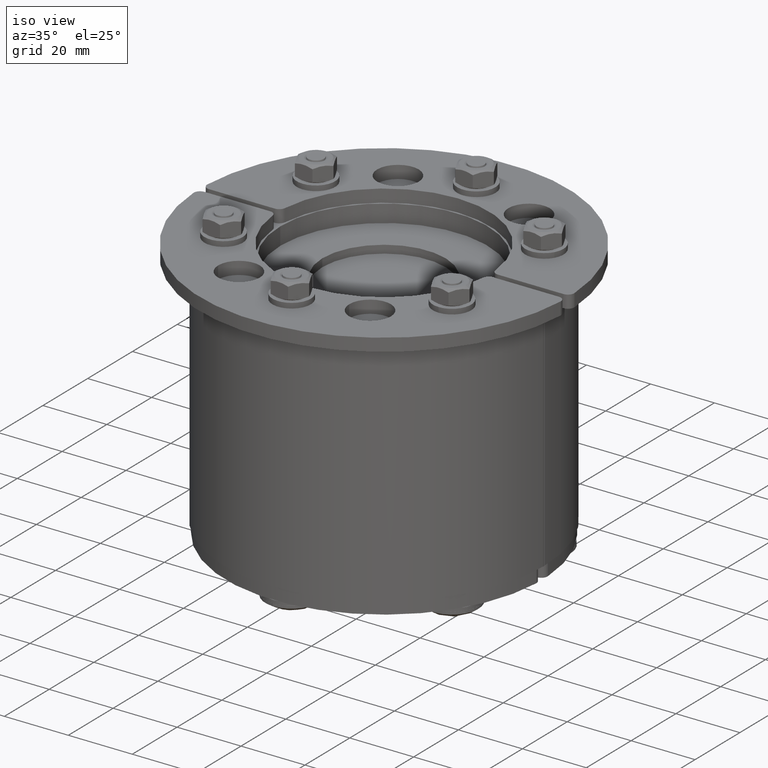
[diagram: clean part render]
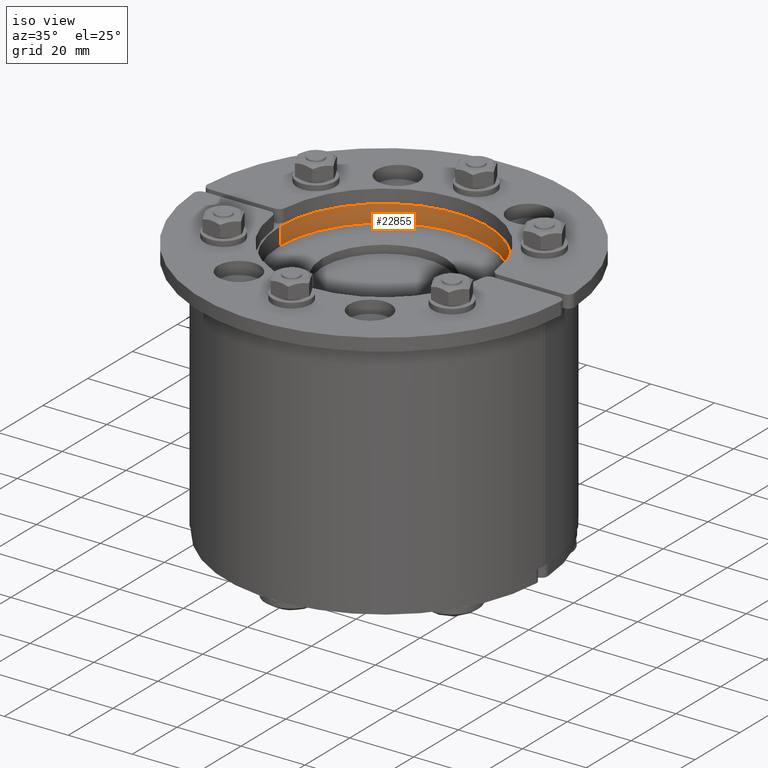
[diagram: same view with one face highlighted and labeled with its STEP entity id]
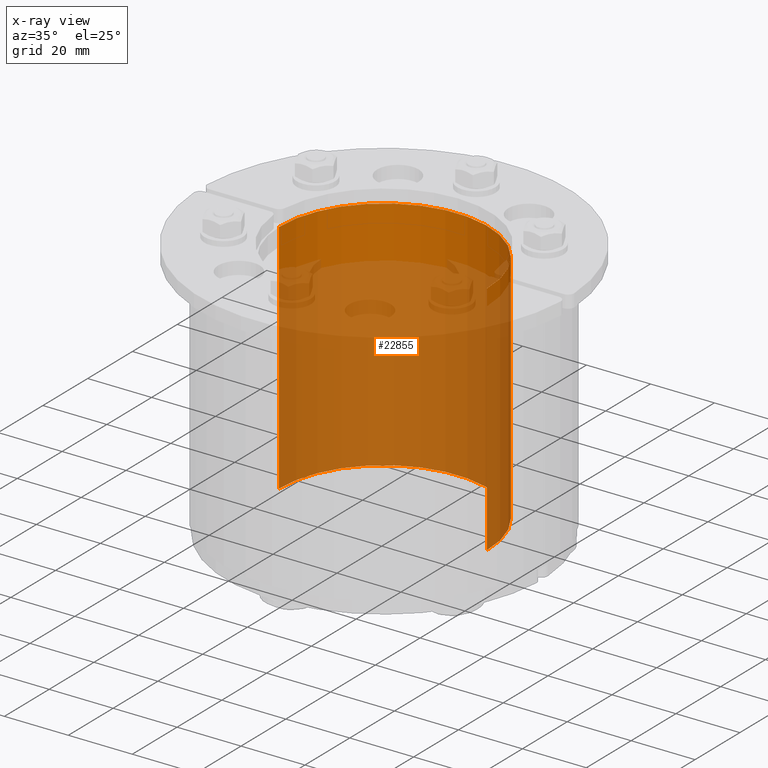
[diagram: x-ray of the same camera — body ghosted, the highlighted face saturated]
A machine part, iso view. The second image highlights one B-rep face of the part: STEP entity #22855.
The next image is the same camera in x-ray: the body ghosted, the highlighted face saturated — about 80% of this face is hidden behind the body in this view.
In plain terms, the highlighted cylindrical surface (partial cylindrical patch) has radius 32.5 mm, axis along (0, -0, -1).
Its self-contained STEP definition (entity closure, byte-faithful):
#9331=CARTESIAN_POINT('',(-32.496153618543843,-0.5,74.0));
#9332=VERTEX_POINT('',#9331);
#9339=CARTESIAN_POINT('',(32.496153618543843,-0.5,74.0));
#9340=VERTEX_POINT('',#9339);
#9341=CARTESIAN_POINT('',(0.0,0.0,74.0));
#9342=DIRECTION('',(0.0,0.0,-1.0));
#9343=DIRECTION('',(0.999881649801349,-0.015384615384615,0.0));
#9344=AXIS2_PLACEMENT_3D('',#9341,#9342,#9343);
#9345=CIRCLE('',#9344,32.5);
#9346=EDGE_CURVE('',#9332,#9340,#9345,.T.);
#22807=CARTESIAN_POINT('',(32.496153618543843,-0.5,0.0));
#22808=VERTEX_POINT('',#22807);
#22822=CARTESIAN_POINT('',(32.496153618543843,-0.5,0.0));
#22823=DIRECTION('',(0.0,0.0,1.0));
#22824=VECTOR('',#22823,74.0);
#22825=LINE('',#22822,#22824);
#22826=EDGE_CURVE('',#22808,#9340,#22825,.T.);
#22831=CARTESIAN_POINT('',(0.0,0.0,0.0));
#22832=DIRECTION('',(0.0,0.0,1.0));
#22833=DIRECTION('',(0.999881649801349,-0.015384615384615,0.0));
#22834=AXIS2_PLACEMENT_3D('',#22831,#22832,#22833);
#22835=CYLINDRICAL_SURFACE('',#22834,32.5);
#22836=CARTESIAN_POINT('',(-32.496153618543843,-0.5,0.0));
#22837=VERTEX_POINT('',#22836);
#22838=CARTESIAN_POINT('',(0.0,0.0,0.0));
#22839=DIRECTION('',(0.0,0.0,1.0));
#22840=DIRECTION('',(0.999881649801349,-0.015384615384615,0.0));
#22841=AXIS2_PLACEMENT_3D('',#22838,#22839,#22840);
#22842=CIRCLE('',#22841,32.5);
#22843=EDGE_CURVE('',#22808,#22837,#22842,.T.);
#22844=ORIENTED_EDGE('',*,*,#22843,.F.);
#22845=ORIENTED_EDGE('',*,*,#22826,.T.);
#22846=ORIENTED_EDGE('',*,*,#9346,.F.);
#22847=CARTESIAN_POINT('',(-32.496153618543843,-0.5,0.0));
#22848=DIRECTION('',(0.0,0.0,1.0));
#22849=VECTOR('',#22848,74.0);
#22850=LINE('',#22847,#22849);
#22851=EDGE_CURVE('',#22837,#9332,#22850,.T.);
#22852=ORIENTED_EDGE('',*,*,#22851,.F.);
#22853=EDGE_LOOP('',(#22844,#22845,#22846,#22852));
#22854=FACE_OUTER_BOUND('',#22853,.T.);
#22855=ADVANCED_FACE('',(#22854),#22835,.F.);